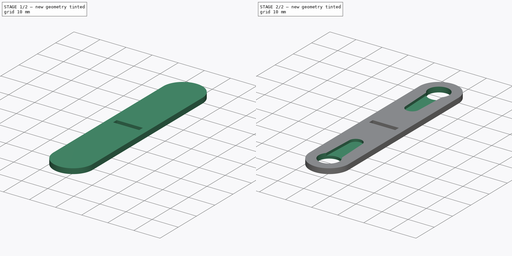
[diagram: build sequence overview — one tinted view per stage of 2, left to right]
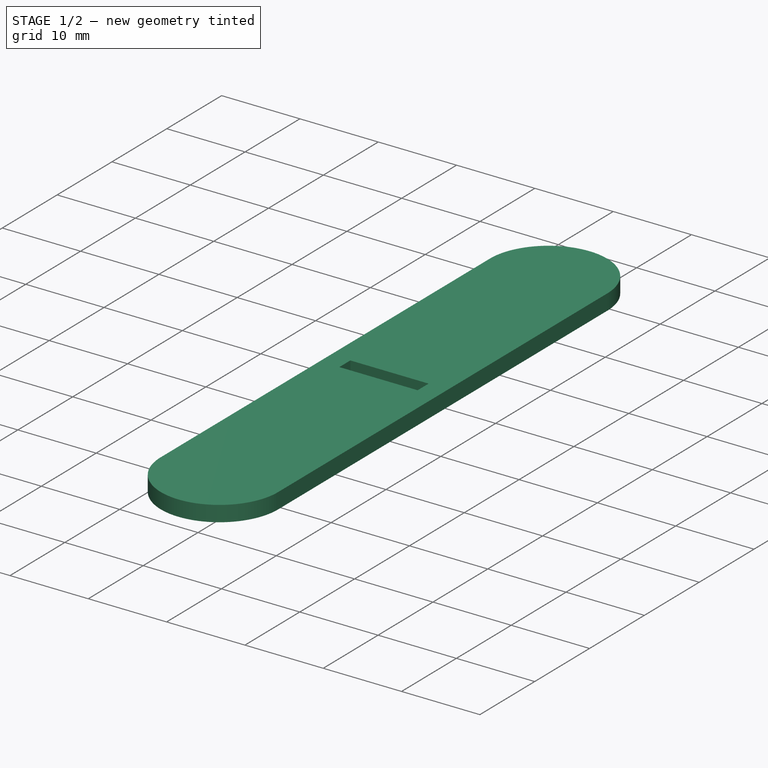
[diagram: stage 1 of 2 — iso view after this stage's code; geometry added in this stage tinted green]
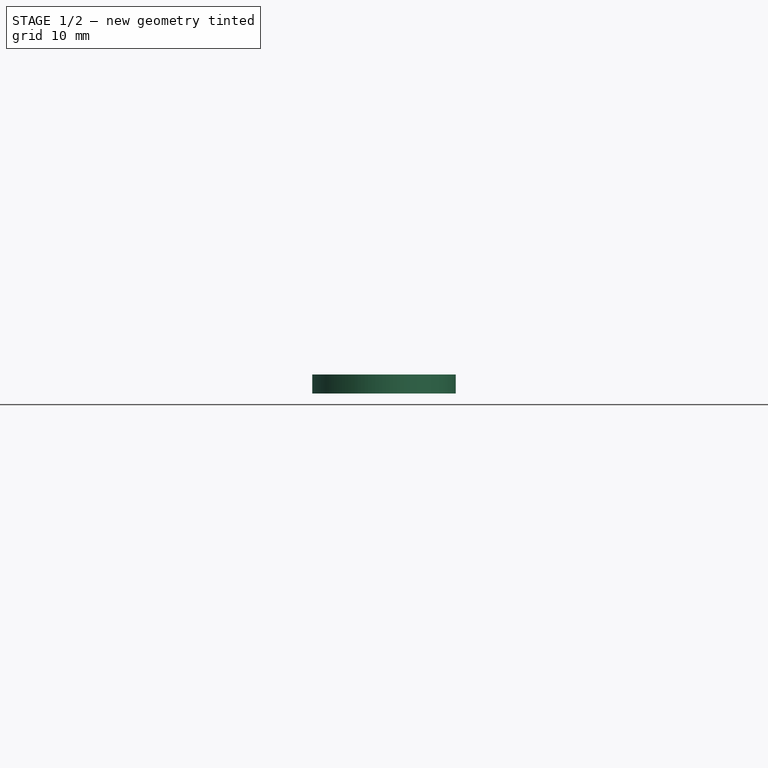
[diagram: stage 1 of 2 — front view after this stage's code; geometry added in this stage tinted green]
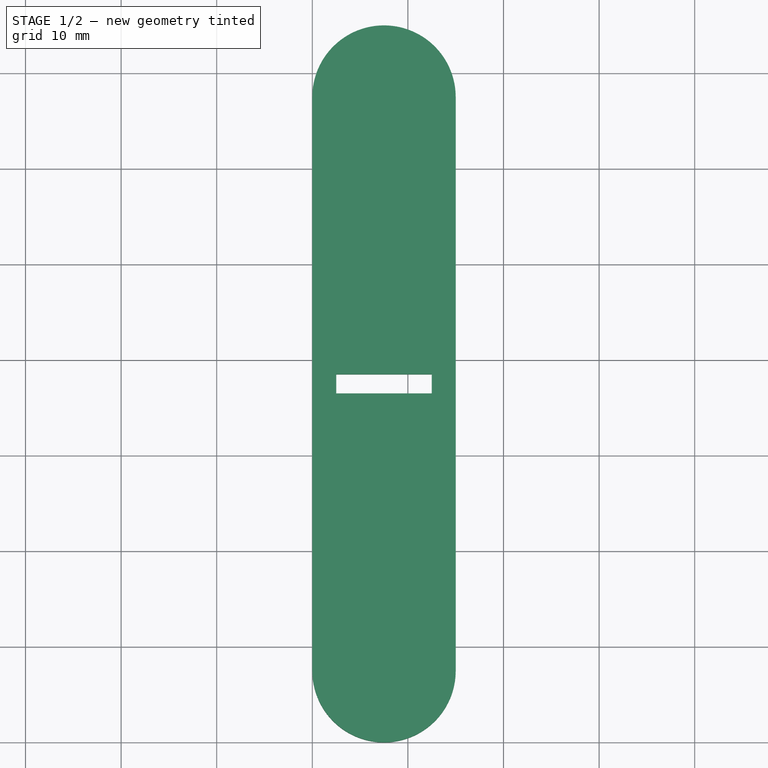
[diagram: stage 1 of 2 — top view after this stage's code; geometry added in this stage tinted green]
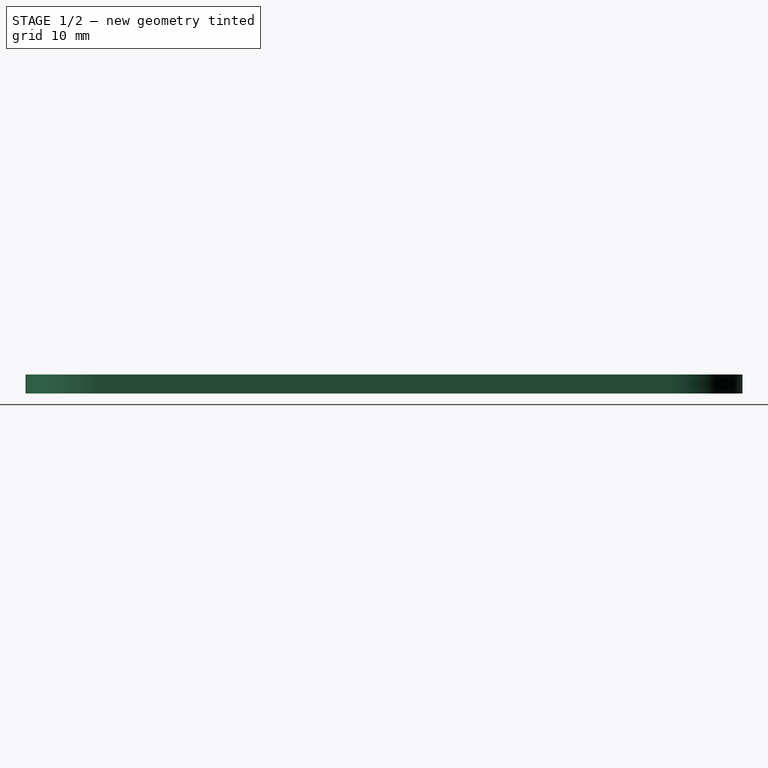
[diagram: stage 1 of 2 — right view after this stage's code; geometry added in this stage tinted green]
FCSTD DOCUMENT  (FreeCAD 0.18R16131 (Git))
Label: fem_haut
License: All rights reserved
LicenseURL: http://en.wikipedia.org/wiki/All_rights_reserved
objects: Sketcher::SketchObject×4, PartDesign::Pocket×3, PartDesign::Pad×1, PartDesign::Body×1
note: 13 computed .brp shape members not serialized (recipe doc carries the construction recipe); baked Part::Feature solids carry a one-line shape summary decoded from their .brp

FEATURE [Sketcher::SketchObject] Sketch
  MapMode = 5
  Support = -> [XY_Plane]
  sketch-geometry (4):
    g0: ArcOfCircle CenterX=7.5 CenterY=67.5 CenterZ=0 NormalX=0 NormalY=0 NormalZ=1 AngleXU=0 Radius=7.5 StartAngle=0 EndAngle=3.14159
    g1: ArcOfCircle CenterX=7.5 CenterY=7.5 CenterZ=0 NormalX=0 NormalY=0 NormalZ=1 AngleXU=0 Radius=7.5 StartAngle=3.14159 EndAngle=6.28319
    g2: LineSegment StartX=15 StartY=67.5 StartZ=0 EndX=15 EndY=7.5 EndZ=0
    g3: LineSegment StartX=0 StartY=67.5 StartZ=0 EndX=0 EndY=7.5 EndZ=0
  constraints (14):
    c: Radius(g0) = 7.5
    c: Horizontal(g0,g0)
    c: Horizontal(g0,g0)
    c: Horizontal(g1,g1)
    c: Horizontal(g1,g1)
    c: Vertical(g2)
    c: Vertical(g3)
    c: Coincident(g1,g2)
    c: Coincident(g2,g0)
    c: Coincident(g3,g0)
    c: Coincident(g3,g1)
    c: PointOnObject(g1,g-2)
    c: Tangent(g1,g-1)
    c: DistanceY(g1,g0) = 60
FEATURE [PartDesign::Pad] Pad
  Length = 2
  Length2 = 100
  Midplane = true
  Profile = -> Sketch
  Type = 0
FEATURE [Sketcher::SketchObject] Sketch001
  MapMode = 5
  Support = -> [XY_Plane]
  sketch-geometry (4):
    g0: LineSegment StartX=2.5 StartY=38.5 StartZ=0 EndX=12.5 EndY=38.5 EndZ=0
    g1: LineSegment StartX=12.5 StartY=38.5 StartZ=0 EndX=12.5 EndY=36.5 EndZ=0
    g2: LineSegment StartX=12.5 StartY=36.5 StartZ=0 EndX=2.5 EndY=36.5 EndZ=0
    g3: LineSegment StartX=2.5 StartY=36.5 StartZ=0 EndX=2.5 EndY=38.5 EndZ=0
  constraints (12):
    c: Coincident(g0,g1)
    c: Coincident(g1,g2)
    c: Coincident(g2,g3)
    c: Coincident(g3,g0)
    c: Horizontal(g0)
    c: Horizontal(g2)
    c: Vertical(g1)
    c: Vertical(g3)
    c: DistanceY(g3,g3) = 2
    c: DistanceX(g2,g2) = 10
    c: DistanceX(g-1,g2) = 2.5
    c: DistanceY(g-1,g2) = 36.5
FEATURE [PartDesign::Pocket] Pocket
  BaseFeature = -> Pad
  Length = 5
  Length2 = 100
  Midplane = true
  Profile = -> Sketch001
  Type = 1
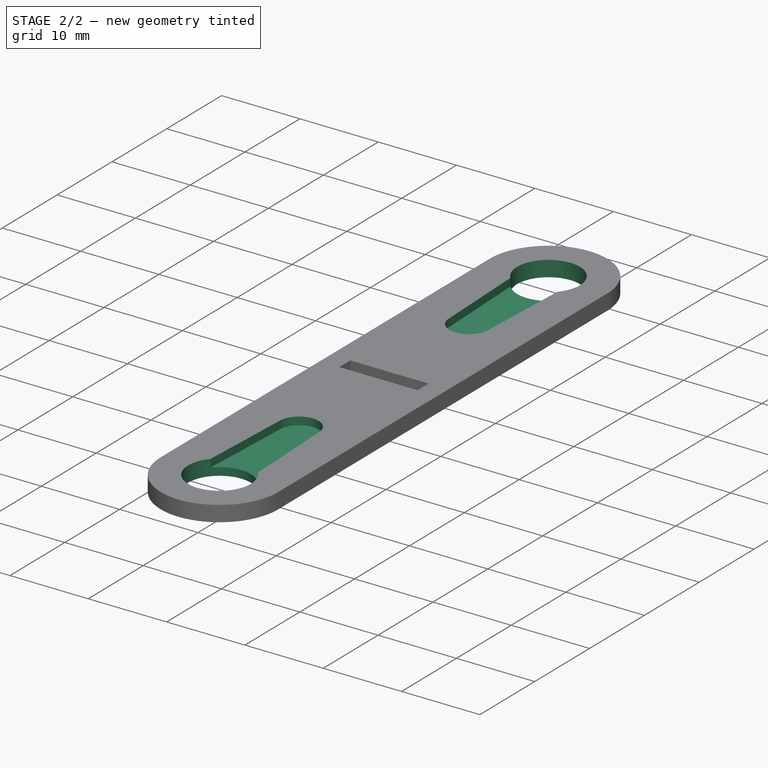
[diagram: stage 2 of 2 — iso view after this stage's code; geometry added in this stage tinted green]
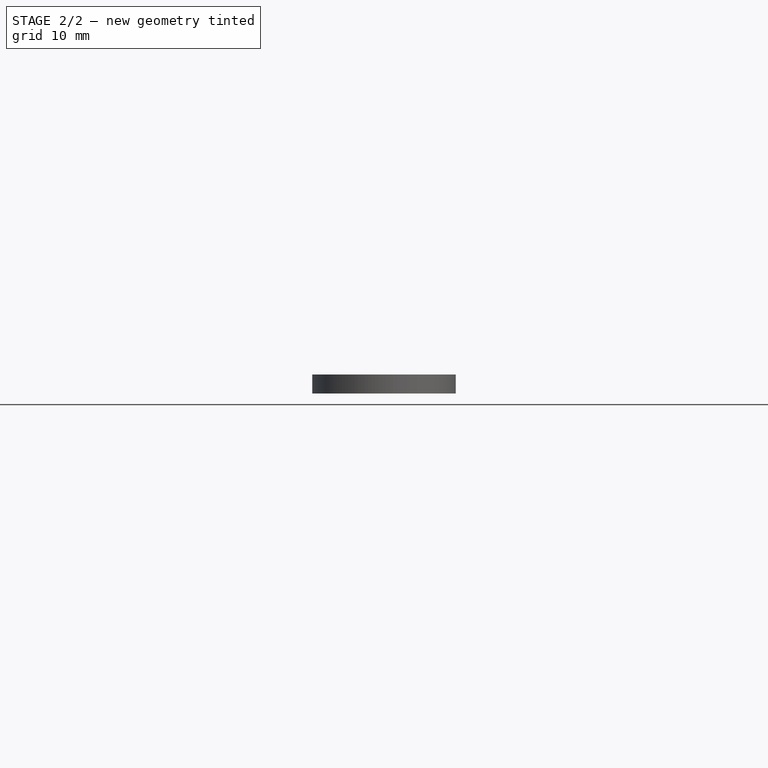
[diagram: stage 2 of 2 — front view after this stage's code; geometry added in this stage tinted green]
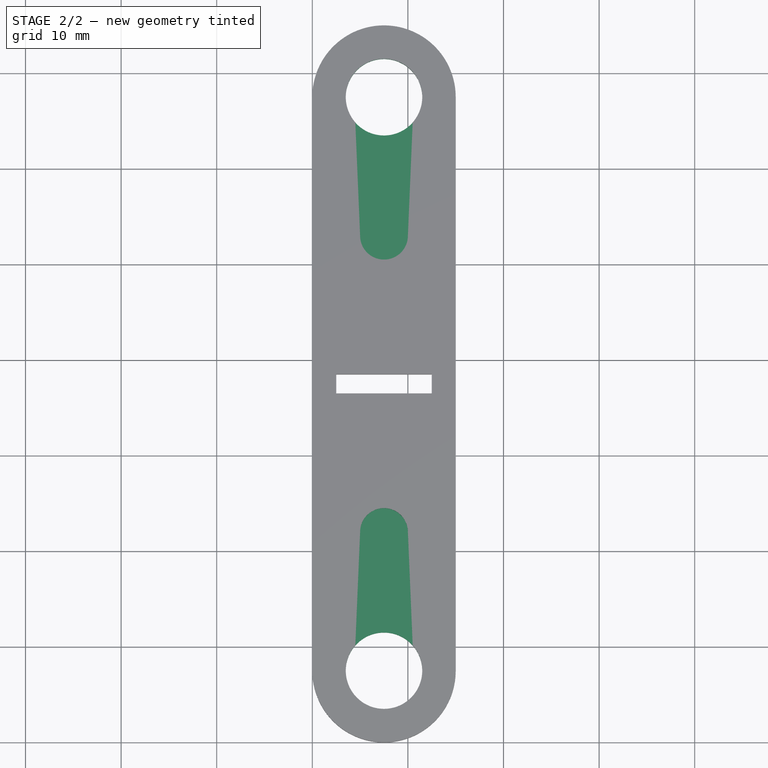
[diagram: stage 2 of 2 — top view after this stage's code; geometry added in this stage tinted green]
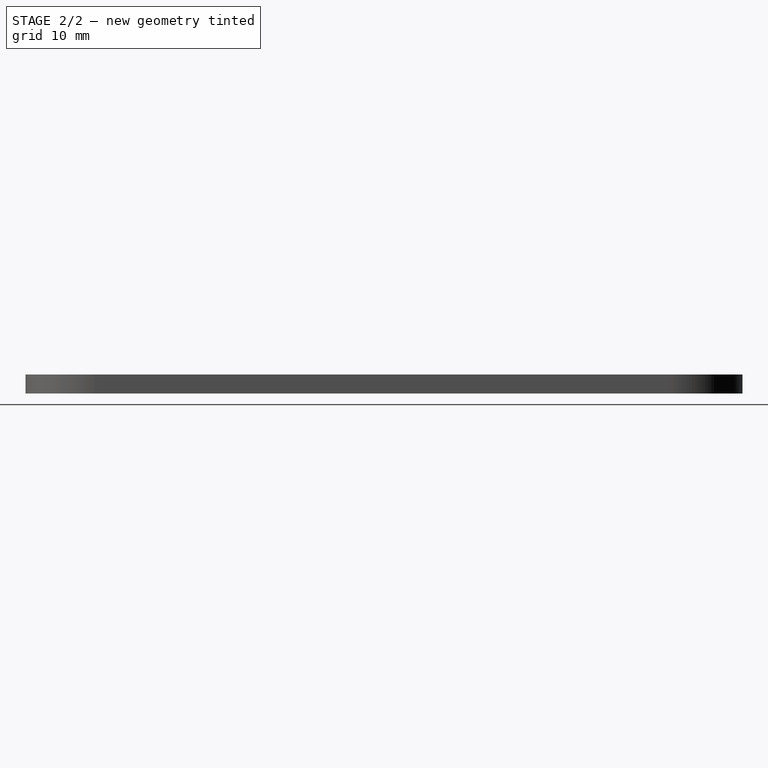
[diagram: stage 2 of 2 — right view after this stage's code; geometry added in this stage tinted green]
FEATURE [Sketcher::SketchObject] Sketch002
  MapMode = 5
  Support = -> [XY_Plane]
  sketch-geometry (2):
    g0: Circle CenterX=7.5 CenterY=7.5 CenterZ=0 NormalX=0 NormalY=0 NormalZ=1 AngleXU=0 Radius=4
    g1: Circle CenterX=7.5 CenterY=67.5 CenterZ=0 NormalX=0 NormalY=0 NormalZ=1 AngleXU=0 Radius=4
  constraints (6):
    c: Radius(g0) = 4
    c: DistanceY(g-1,g0) = 7.5
    c: DistanceX(g-1,g0) = 7.5
    c: Equal(g0,g1) = 4.5
    c: Vertical(g0,g1)
    c: DistanceY(g0,g1) = 60
FEATURE [PartDesign::Pocket] Pocket001
  BaseFeature = -> Pocket
  Length = 5
  Length2 = 100
  Midplane = true
  Profile = -> Sketch002
  Type = 1
FEATURE [Sketcher::SketchObject] CopySketch003
  MapMode = 5
  Support = -> [XY_Plane]
  sketch-geometry (8):
    g0: ArcOfCircle CenterX=7.5 CenterY=67.5 CenterZ=0 NormalX=0 NormalY=0 NormalZ=1 AngleXU=0 Radius=4 StartAngle=5.56045 EndAngle=10.1475
    g1: LineSegment StartX=4.5 StartY=64.8542 StartZ=0 EndX=5 EndY=53 EndZ=0
    g2: LineSegment StartX=10.5 StartY=64.8542 StartZ=0 EndX=10 EndY=53 EndZ=0
    g3: ArcOfCircle CenterX=7.5 CenterY=53 CenterZ=0 NormalX=0 NormalY=0 NormalZ=1 AngleXU=0 Radius=2.5 StartAngle=3.14159 EndAngle=6.28319
    g4: ArcOfCircle CenterX=7.5 CenterY=7.5 CenterZ=0 NormalX=0 NormalY=0 NormalZ=1 AngleXU=0 Radius=4 StartAngle=2.41886 EndAngle=7.00592
    g5: ArcOfCircle CenterX=7.5 CenterY=22 CenterZ=0 NormalX=0 NormalY=0 NormalZ=1 AngleXU=0 Radius=2.5 StartAngle=0 EndAngle=3.14159
    g6: LineSegment StartX=4.5 StartY=10.1458 StartZ=0 EndX=5 EndY=22 EndZ=0
    g7: LineSegment StartX=10.5 StartY=10.1458 StartZ=0 EndX=10 EndY=22 EndZ=0
  constraints (28):
    c: Horizontal(g0,g0)
    c: Radius(g0) = 4
    c: DistanceY(g-1,g0) = 67.5
    c: DistanceX(g-1,g0) = 7.5
    c: DistanceX(g0,g0) = 6
    c: Coincident(g1,g0)
    c: Coincident(g2,g0)
    c: Vertical(g3,g0)
    c: DistanceY(g3,g0) = 14.5
    c: Radius(g3) = 2.5
    c: Horizontal(g3,g3)
    c: DistanceX(g3,g3) = 5
    c: Coincident(g2,g3)
    c: Coincident(g1,g3)
    c: Vertical(g4,g0)
    c: DistanceY(g-1,g4) = 7.5
    c: Radius(g4) = 4
    c: Horizontal(g4,g4)
    c: DistanceX(g4,g4) = 6
    c: Vertical(g5,g4)
    c: Horizontal(g5,g5)
    c: Horizontal(g5,g5)
    c: Radius(g5) = 2.5
    c: DistanceY(g4,g5) = 14.5
    c: Coincident(g6,g4)
    c: Coincident(g6,g5)
    c: Coincident(g7,g5)
    c: Coincident(g7,g4)
FEATURE [PartDesign::Pocket] Pocket002
  BaseFeature = -> Pocket001
  Length = 1
  Length2 = 100
  Profile = -> CopySketch003
  Reversed = true
  Type = 0
FEATURE [PartDesign::Body] Body
  Group = -> [Sketch,Pad,Sketch001,Pocket,Sketch002,Pocket001,CopySketch003,Pocket002]
  Origin = -> Origin
  Tip = -> Pocket002
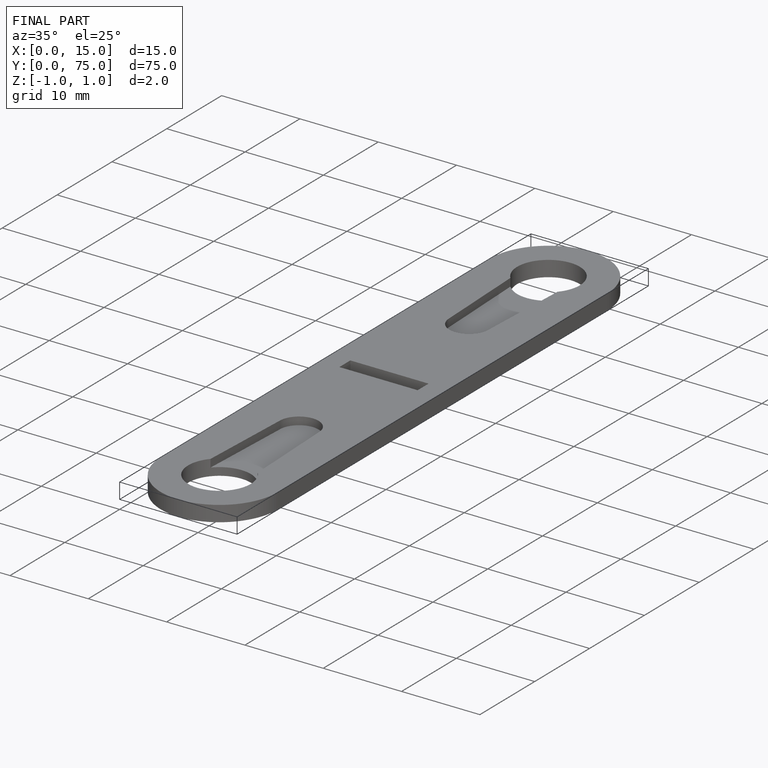
[diagram: finished part — iso view with bounding-box wireframe]
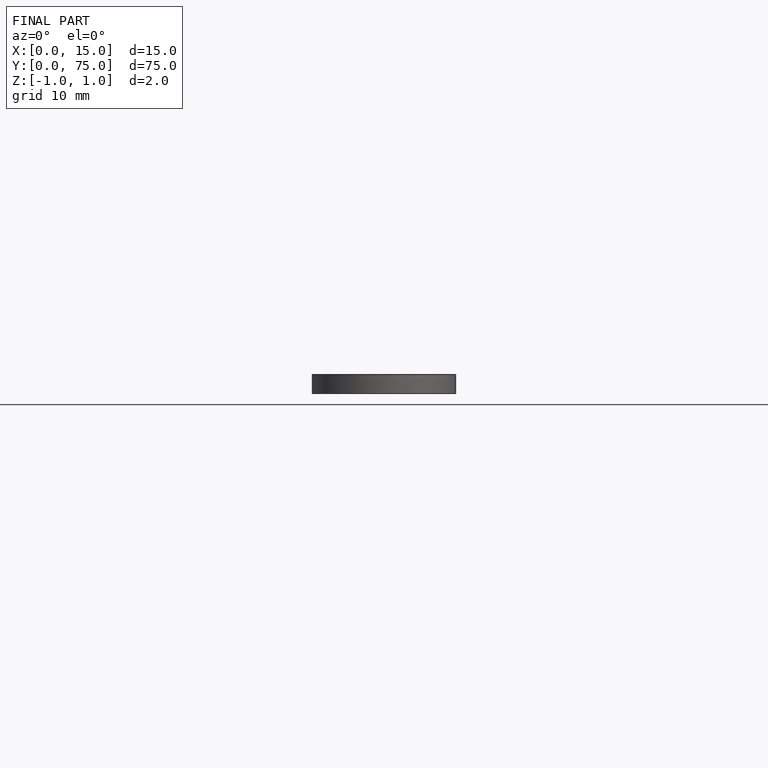
[diagram: finished part — front view with bounding-box wireframe]
